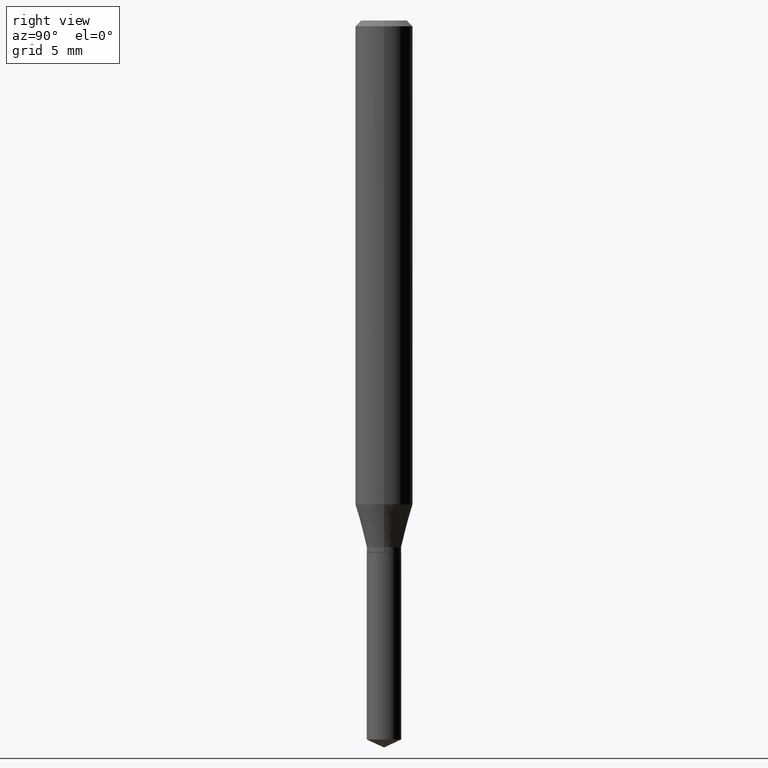
[diagram: clean part render]
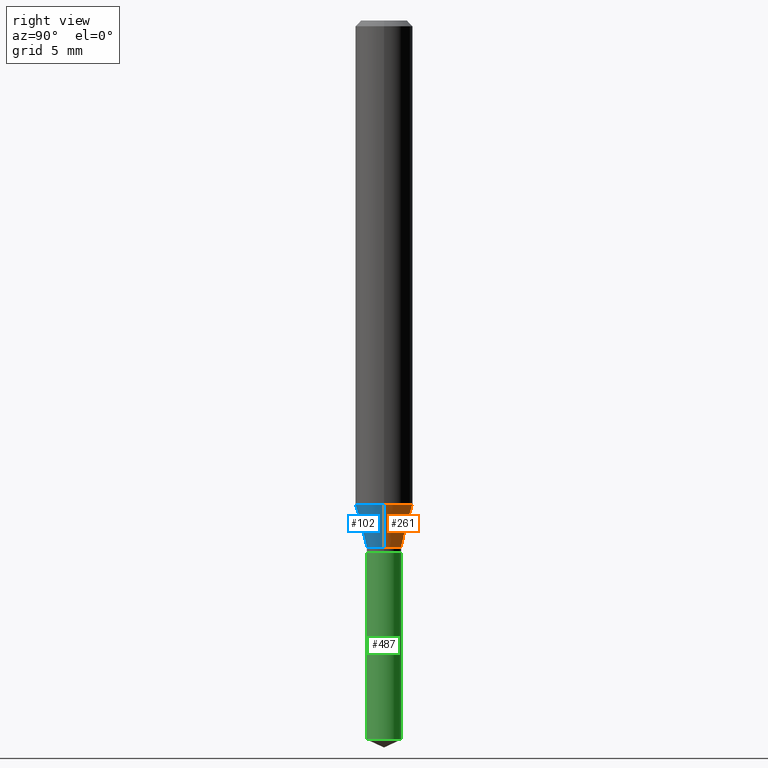
[diagram: same view with three faces highlighted in distinct colors, each labeled with its STEP entity id]
A machine part, right view with three faces highlighted in distinct colors.
Their STEP definitions:

[orange] entity #261 — the highlighted conical surface has half-angle 15 deg.
#1 = DIRECTION ( 'NONE',  ( -2.445468806185136597E-29, 3.491481338843145583E-15, 1.000000000000000000 ) ) ;
#33 = CONICAL_SURFACE ( 'NONE', #85, 0.03544999999999998846, 0.2617993877991499629 ) ;
#40 = ORIENTED_EDGE ( 'NONE', *, *, #426, .T. ) ;
#45 = DIRECTION ( 'NONE',  ( 0.2588190451025212391, 1.565188264969622362E-15, 0.9659258262890679791 ) ) ;
#56 = VERTEX_POINT ( 'NONE', #463 ) ;
#62 = ORIENTED_EDGE ( 'NONE', *, *, #73, .T. ) ;
#66 = AXIS2_PLACEMENT_3D ( 'NONE', #164, #1, #461 ) ;
#73 = EDGE_CURVE ( 'NONE', #56, #325, #320, .T. ) ;
#85 = AXIS2_PLACEMENT_3D ( 'NONE', #113, #197, #486 ) ;
#109 = CARTESIAN_POINT ( 'NONE',  ( 0.05905000000000011628, -3.889243465583765977E-15, -0.9958236009413741208 ) ) ;
#113 = CARTESIAN_POINT ( 'NONE',  ( 2.650643639024069224E-29, -3.784416623172084531E-15, -1.083899999999999864 ) ) ;
#133 = AXIS2_PLACEMENT_3D ( 'NONE', #158, #156, #301 ) ;
#138 = VERTEX_POINT ( 'NONE', #109 ) ;
#139 = CARTESIAN_POINT ( 'NONE',  ( -0.03544999999999998846, -3.532529223345129541E-15, -1.083899999999999864 ) ) ;
#156 = DIRECTION ( 'NONE',  ( -2.445468806185136597E-29, 3.491481338843145583E-15, 1.000000000000000000 ) ) ;
#158 = CARTESIAN_POINT ( 'NONE',  ( 2.435255552565086005E-29, -3.476899519466391057E-15, -0.9958236009413741208 ) ) ;
#159 = CIRCLE ( 'NONE', #66, 0.03544999999999998846 ) ;
#164 = CARTESIAN_POINT ( 'NONE',  ( 2.650643639024069224E-29, -3.784416623172084531E-15, -1.083899999999999864 ) ) ;
#172 = DIRECTION ( 'NONE',  ( -0.2588190451025212391, 5.211531920934549464E-15, 0.9659258262890679791 ) ) ;
#173 = CIRCLE ( 'NONE', #133, 0.05905000000000011628 ) ;
#188 = ORIENTED_EDGE ( 'NONE', *, *, #414, .F. ) ;
#197 = DIRECTION ( 'NONE',  ( -2.445468806185136597E-29, 3.491481338843145583E-15, 1.000000000000000000 ) ) ;
#198 = EDGE_CURVE ( 'NONE', #138, #325, #173, .T. ) ;
#261 = ADVANCED_FACE ( 'NONE', ( #436 ), #33, .T. ) ;
#295 = EDGE_LOOP ( 'NONE', ( #40, #62, #377, #188 ) ) ;
#301 = DIRECTION ( 'NONE',  ( 1.000000000000000000, -6.982962677686266711E-15, 0.000000000000000000 ) ) ;
#309 = CARTESIAN_POINT ( 'NONE',  ( -0.05905000000000011628, -3.057324034000050775E-15, -0.9958236009413741208 ) ) ;
#320 = LINE ( 'NONE', #139, #457 ) ;
#325 = VERTEX_POINT ( 'NONE', #309 ) ;
#370 = VECTOR ( 'NONE', #45, 39.37007874015748854 ) ;
#377 = ORIENTED_EDGE ( 'NONE', *, *, #198, .F. ) ;
#386 = CARTESIAN_POINT ( 'NONE',  ( 0.03544999999999998846, -4.031962650096063203E-15, -1.083899999999999864 ) ) ;
#414 = EDGE_CURVE ( 'NONE', #467, #138, #458, .T. ) ;
#426 = EDGE_CURVE ( 'NONE', #467, #56, #159, .T. ) ;
#436 = FACE_OUTER_BOUND ( 'NONE', #295, .T. ) ;
#457 = VECTOR ( 'NONE', #172, 39.37007874015748854 ) ;
#458 = LINE ( 'NONE', #386, #370 ) ;
#461 = DIRECTION ( 'NONE',  ( 1.000000000000000000, -6.982962677686271444E-15, 0.000000000000000000 ) ) ;
#463 = CARTESIAN_POINT ( 'NONE',  ( -0.03544999999999998846, -3.550161204106287516E-15, -1.083899999999999864 ) ) ;
#466 = CARTESIAN_POINT ( 'NONE',  ( 0.03544999999999998846, -4.031962650096063203E-15, -1.083899999999999864 ) ) ;
#467 = VERTEX_POINT ( 'NONE', #466 ) ;
#486 = DIRECTION ( 'NONE',  ( 1.000000000000000000, -6.982962677686271444E-15, 0.000000000000000000 ) ) ;

[blue] entity #102 — the highlighted conical surface has half-angle 15 deg.
#8 = DIRECTION ( 'NONE',  ( -2.445468806185136597E-29, 3.491481338843145583E-15, 1.000000000000000000 ) ) ;
#28 = ORIENTED_EDGE ( 'NONE', *, *, #73, .F. ) ;
#45 = DIRECTION ( 'NONE',  ( 0.2588190451025212391, 1.565188264969622362E-15, 0.9659258262890679791 ) ) ;
#56 = VERTEX_POINT ( 'NONE', #463 ) ;
#57 = AXIS2_PLACEMENT_3D ( 'NONE', #230, #298, #449 ) ;
#58 = AXIS2_PLACEMENT_3D ( 'NONE', #428, #8, #371 ) ;
#60 = EDGE_CURVE ( 'NONE', #56, #467, #480, .T. ) ;
#73 = EDGE_CURVE ( 'NONE', #56, #325, #320, .T. ) ;
#102 = ADVANCED_FACE ( 'NONE', ( #339 ), #278, .T. ) ;
#109 = CARTESIAN_POINT ( 'NONE',  ( 0.05905000000000011628, -3.889243465583765977E-15, -0.9958236009413741208 ) ) ;
#111 = ORIENTED_EDGE ( 'NONE', *, *, #244, .F. ) ;
#138 = VERTEX_POINT ( 'NONE', #109 ) ;
#139 = CARTESIAN_POINT ( 'NONE',  ( -0.03544999999999998846, -3.532529223345129541E-15, -1.083899999999999864 ) ) ;
#140 = AXIS2_PLACEMENT_3D ( 'NONE', #483, #157, #294 ) ;
#157 = DIRECTION ( 'NONE',  ( -2.445468806185136597E-29, 3.491481338843145583E-15, 1.000000000000000000 ) ) ;
#172 = DIRECTION ( 'NONE',  ( -0.2588190451025212391, 5.211531920934549464E-15, 0.9659258262890679791 ) ) ;
#210 = ORIENTED_EDGE ( 'NONE', *, *, #414, .T. ) ;
#222 = ORIENTED_EDGE ( 'NONE', *, *, #60, .T. ) ;
#230 = CARTESIAN_POINT ( 'NONE',  ( 2.650643639024069224E-29, -3.784416623172084531E-15, -1.083899999999999864 ) ) ;
#244 = EDGE_CURVE ( 'NONE', #325, #138, #354, .T. ) ;
#278 = CONICAL_SURFACE ( 'NONE', #57, 0.03544999999999998846, 0.2617993877991499629 ) ;
#294 = DIRECTION ( 'NONE',  ( 1.000000000000000000, -6.982962677686266711E-15, 0.000000000000000000 ) ) ;
#298 = DIRECTION ( 'NONE',  ( -2.445468806185136597E-29, 3.491481338843145583E-15, 1.000000000000000000 ) ) ;
#309 = CARTESIAN_POINT ( 'NONE',  ( -0.05905000000000011628, -3.057324034000050775E-15, -0.9958236009413741208 ) ) ;
#320 = LINE ( 'NONE', #139, #457 ) ;
#325 = VERTEX_POINT ( 'NONE', #309 ) ;
#339 = FACE_OUTER_BOUND ( 'NONE', #431, .T. ) ;
#354 = CIRCLE ( 'NONE', #140, 0.05905000000000011628 ) ;
#370 = VECTOR ( 'NONE', #45, 39.37007874015748854 ) ;
#371 = DIRECTION ( 'NONE',  ( 1.000000000000000000, -6.982962677686271444E-15, 0.000000000000000000 ) ) ;
#386 = CARTESIAN_POINT ( 'NONE',  ( 0.03544999999999998846, -4.031962650096063203E-15, -1.083899999999999864 ) ) ;
#414 = EDGE_CURVE ( 'NONE', #467, #138, #458, .T. ) ;
#428 = CARTESIAN_POINT ( 'NONE',  ( 2.650643639024069224E-29, -3.784416623172084531E-15, -1.083899999999999864 ) ) ;
#431 = EDGE_LOOP ( 'NONE', ( #28, #222, #210, #111 ) ) ;
#449 = DIRECTION ( 'NONE',  ( 1.000000000000000000, -6.982962677686271444E-15, 0.000000000000000000 ) ) ;
#457 = VECTOR ( 'NONE', #172, 39.37007874015748854 ) ;
#458 = LINE ( 'NONE', #386, #370 ) ;
#463 = CARTESIAN_POINT ( 'NONE',  ( -0.03544999999999998846, -3.550161204106287516E-15, -1.083899999999999864 ) ) ;
#466 = CARTESIAN_POINT ( 'NONE',  ( 0.03544999999999998846, -4.031962650096063203E-15, -1.083899999999999864 ) ) ;
#467 = VERTEX_POINT ( 'NONE', #466 ) ;
#480 = CIRCLE ( 'NONE', #58, 0.03544999999999998846 ) ;
#483 = CARTESIAN_POINT ( 'NONE',  ( 2.435255552565086005E-29, -3.476899519466391057E-15, -0.9958236009413741208 ) ) ;

[green] entity #487 — the highlighted cylindrical surface (edge-blend (fillet) strip) has radius 0.9004 mm, axis along (-0, 0, 1).
#11 = ORIENTED_EDGE ( 'NONE', *, *, #350, .T. ) ;
#21 = LINE ( 'NONE', #195, #237 ) ;
#30 = AXIS2_PLACEMENT_3D ( 'NONE', #434, #208, #393 ) ;
#38 = EDGE_CURVE ( 'NONE', #430, #146, #141, .T. ) ;
#80 = VERTEX_POINT ( 'NONE', #95 ) ;
#95 = CARTESIAN_POINT ( 'NONE',  ( -2.475460269239419410E-16, -0.03545000000000516488, -1.479569393518405773 ) ) ;
#100 = CARTESIAN_POINT ( 'NONE',  ( 2.676565608369631794E-29, -3.821426325363822773E-15, -1.094499999999999806 ) ) ;
#120 = LINE ( 'NONE', #419, #154 ) ;
#141 = CIRCLE ( 'NONE', #273, 0.03545000000000000234 ) ;
#146 = VERTEX_POINT ( 'NONE', #267 ) ;
#149 = VERTEX_POINT ( 'NONE', #380 ) ;
#154 = VECTOR ( 'NONE', #387, 39.37007874015748143 ) ;
#190 = DIRECTION ( 'NONE',  ( -2.445402730703145379E-29, 3.491575962694140016E-15, 1.000000000000000000 ) ) ;
#195 = CARTESIAN_POINT ( 'NONE',  ( 2.518873998269822552E-16, 0.03544999999999617901, -1.094500000000000028 ) ) ;
#208 = DIRECTION ( 'NONE',  ( -2.445402730703145379E-29, 3.491575962694140016E-15, 1.000000000000000000 ) ) ;
#215 = EDGE_CURVE ( 'NONE', #149, #146, #21, .T. ) ;
#237 = VECTOR ( 'NONE', #190, 39.37007874015748143 ) ;
#238 = CIRCLE ( 'NONE', #379, 0.03544999999999999540 ) ;
#255 = ORIENTED_EDGE ( 'NONE', *, *, #215, .T. ) ;
#267 = CARTESIAN_POINT ( 'NONE',  ( 2.518873998269917215E-16, 0.03544999999999617901, -1.094500000000000028 ) ) ;
#273 = AXIS2_PLACEMENT_3D ( 'NONE', #100, #280, #471 ) ;
#274 = CARTESIAN_POINT ( 'NONE',  ( 3.618215354789745296E-29, -5.165925363741898553E-15, -1.479569393518405773 ) ) ;
#275 = CARTESIAN_POINT ( 'NONE',  ( -2.475460269239513581E-16, -0.03545000000000382567, -1.094499999999999806 ) ) ;
#280 = DIRECTION ( 'NONE',  ( -2.445402730703145379E-29, 3.491575962694140016E-15, 1.000000000000000000 ) ) ;
#283 = ORIENTED_EDGE ( 'NONE', *, *, #305, .F. ) ;
#305 = EDGE_CURVE ( 'NONE', #80, #430, #120, .T. ) ;
#334 = FACE_OUTER_BOUND ( 'NONE', #429, .T. ) ;
#350 = EDGE_CURVE ( 'NONE', #80, #149, #238, .T. ) ;
#352 = DIRECTION ( 'NONE',  ( -6.982962677686265133E-15, -1.000000000000000000, 0.000000000000000000 ) ) ;
#374 = ORIENTED_EDGE ( 'NONE', *, *, #38, .F. ) ;
#375 = CYLINDRICAL_SURFACE ( 'NONE', #30, 0.03545000000000000234 ) ;
#379 = AXIS2_PLACEMENT_3D ( 'NONE', #274, #415, #352 ) ;
#380 = CARTESIAN_POINT ( 'NONE',  ( 2.518873998269916722E-16, 0.03544999999999483981, -1.479569393518405773 ) ) ;
#387 = DIRECTION ( 'NONE',  ( -2.445402730703145379E-29, 3.491575962694140016E-15, 1.000000000000000000 ) ) ;
#393 = DIRECTION ( 'NONE',  ( -6.982962677686265922E-15, -1.000000000000000000, 3.853100132107564390E-15 ) ) ;
#415 = DIRECTION ( 'NONE',  ( -2.445402730703145379E-29, 3.491575962694140016E-15, 1.000000000000000000 ) ) ;
#419 = CARTESIAN_POINT ( 'NONE',  ( -2.475460269239513581E-16, -0.03545000000000382567, -1.094499999999999806 ) ) ;
#429 = EDGE_LOOP ( 'NONE', ( #11, #255, #374, #283 ) ) ;
#430 = VERTEX_POINT ( 'NONE', #275 ) ;
#434 = CARTESIAN_POINT ( 'NONE',  ( 2.676565608369631794E-29, -3.821426325363822773E-15, -1.094499999999999806 ) ) ;
#471 = DIRECTION ( 'NONE',  ( -6.982962677686265922E-15, -1.000000000000000000, 3.853100132107564390E-15 ) ) ;
#487 = ADVANCED_FACE ( 'NONE', ( #334 ), #375, .T. ) ;